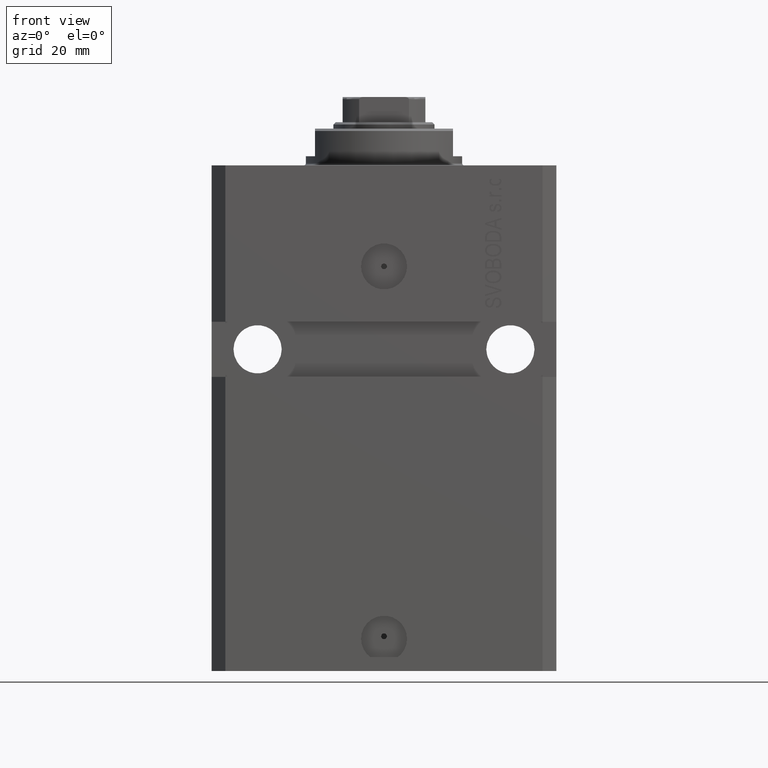
[diagram: clean part render]
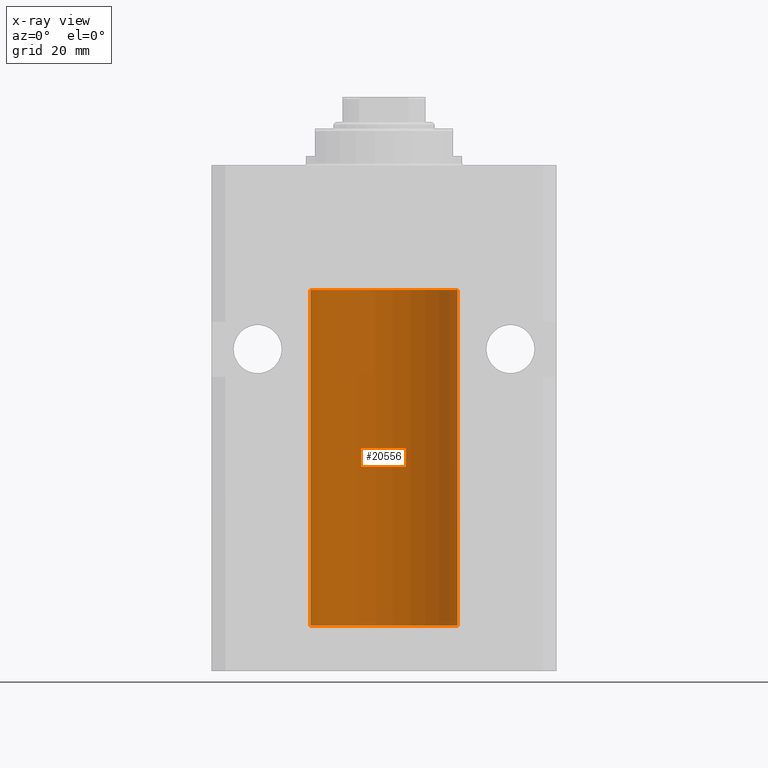
[diagram: x-ray — body ghosted, one internal face saturated and labeled with its STEP entity id]
A machine part, front view, then the same camera in x-ray: the body is ghosted and one INTERNAL B-rep face — a face not visible from any outside direction — is saturated and labeled: STEP entity #20556.
In plain terms, the highlighted cylindrical surface (partial cylindrical patch) has radius 16 mm, axis along (0, 0, 1).
Its self-contained STEP definition (entity closure, byte-faithful):
#114 = B_SPLINE_CURVE_WITH_KNOTS ( 'NONE', 3,
 ( #31271, #35084, #28152, #2066, #16691, #31974, #24103, #38223 ),
 .UNSPECIFIED., .F., .F.,
 ( 4, 2, 2, 4 ),
 ( 0.0009773326288700682433, 0.001221554802188685399, 0.001465776975507302772, 0.001954221322144537518 ),
 .UNSPECIFIED. ) ;
#891 = EDGE_CURVE ( 'NONE', #12494, #15029, #44845, .T. ) ;
#1212 = VECTOR ( 'NONE', #8064, 1000.000000000000000 ) ;
#1731 = VECTOR ( 'NONE', #17232, 1000.000000000000000 ) ;
#1970 = CARTESIAN_POINT ( 'NONE',  ( 0.000000000000000000, 0.000000000000000000, -27.10000000000000142 ) ) ;
#2066 = CARTESIAN_POINT ( 'NONE',  ( 15.99070695999103542, 0.5461439696927204990, -97.68526802364048933 ) ) ;
#2711 = EDGE_CURVE ( 'NONE', #21447, #28491, #37248, .T. ) ;
#2772 = CARTESIAN_POINT ( 'NONE',  ( 15.98778830858070954, 0.6250000000080517815, -97.99999999999916156 ) ) ;
#3804 = CARTESIAN_POINT ( 'NONE',  ( -15.99707730059171240, 0.3150375992092294686, -97.45402333202572720 ) ) ;
#3817 = DIRECTION ( 'NONE',  ( 1.000000000000000000, 0.000000000000000000, 0.000000000000000000 ) ) ;
#3882 = CARTESIAN_POINT ( 'NONE',  ( 0.000000000000000000, 0.000000000000000000, -100.0999999999999943 ) ) ;
#4028 = CIRCLE ( 'NONE', #30773, 16.00000000000000000 ) ;
#4309 = CARTESIAN_POINT ( 'NONE',  ( 16.00000000000000000, -1.835653844722709729E-15, -98.62500000000000000 ) ) ;
#4752 = CARTESIAN_POINT ( 'NONE',  ( -15.99711699979841661, 0.3253759916140614439, -98.55856151623174810 ) ) ;
#5467 = ORIENTED_EDGE ( 'NONE', *, *, #32727, .T. ) ;
#6295 = B_SPLINE_CURVE_WITH_KNOTS ( 'NONE', 3,
 ( #9059, #38246, #46150, #31292, #42532, #13344, #38005, #20750 ),
 .UNSPECIFIED., .F., .F.,
 ( 4, 2, 2, 4 ),
 ( 1.783888443149829469E-18, 0.0002443331572175257886, 0.0004886663144350497342, 0.0009773326288700682433 ),
 .UNSPECIFIED. ) ;
#6352 = EDGE_CURVE ( 'NONE', #40567, #27099, #6295, .T. ) ;
#7632 = CARTESIAN_POINT ( 'NONE',  ( -15.99548640841682712, 0.3843705577988784650, -97.50046628527007897 ) ) ;
#7664 = EDGE_CURVE ( 'NONE', #10472, #28120, #42254, .T. ) ;
#7740 = CARTESIAN_POINT ( 'NONE',  ( 16.00000000000000000, 0.000000000000000000, -100.0999999999999943 ) ) ;
#8064 = DIRECTION ( 'NONE',  ( -0.000000000000000000, -0.000000000000000000, 1.000000000000000000 ) ) ;
#9059 = CARTESIAN_POINT ( 'NONE',  ( 16.00000000000000000, -1.835653844722709729E-15, -98.62500000000000000 ) ) ;
#9445 = CARTESIAN_POINT ( 'NONE',  ( 16.00000000000000000, 0.000000000000000000, -100.0999999999999943 ) ) ;
#9485 = CARTESIAN_POINT ( 'NONE',  ( -16.00000000000000000, 1.959434878635765131E-15, -100.0999999999999943 ) ) ;
#9709 = DIRECTION ( 'NONE',  ( -0.000000000000000000, -0.000000000000000000, 1.000000000000000000 ) ) ;
#10472 = VERTEX_POINT ( 'NONE', #27111 ) ;
#10588 = DIRECTION ( 'NONE',  ( 0.000000000000000000, 0.000000000000000000, 1.000000000000000000 ) ) ;
#10821 = DIRECTION ( 'NONE',  ( 1.000000000000000000, 0.000000000000000000, 0.000000000000000000 ) ) ;
#11691 = CARTESIAN_POINT ( 'NONE',  ( -16.00000000000000000, -1.303459030566954747E-14, -97.37500000000000000 ) ) ;
#12287 = DIRECTION ( 'NONE',  ( 1.000000000000000000, 0.000000000000000000, 0.000000000000000000 ) ) ;
#12494 = VERTEX_POINT ( 'NONE', #7740 ) ;
#12529 = DIRECTION ( 'NONE',  ( 0.000000000000000000, 0.000000000000000000, 1.000000000000000000 ) ) ;
#13344 = CARTESIAN_POINT ( 'NONE',  ( 15.99070366873610283, 0.5574063959867601170, -98.32639436837558833 ) ) ;
#13533 = EDGE_LOOP ( 'NONE', ( #28708, #19731, #15652, #35348, #19480, #34161, #41862, #21946, #5467 ) ) ;
#14752 = VECTOR ( 'NONE', #9709, 1000.000000000000000 ) ;
#15029 = VERTEX_POINT ( 'NONE', #20267 ) ;
#15051 = CARTESIAN_POINT ( 'NONE',  ( -15.99070426498503572, 0.5462220647145610286, -98.31460064614144301 ) ) ;
#15562 = VERTEX_POINT ( 'NONE', #27278 ) ;
#15652 = ORIENTED_EDGE ( 'NONE', *, *, #19218, .T. ) ;
#15759 = CARTESIAN_POINT ( 'NONE',  ( -15.99934216141748244, 0.1636497843296308152, -97.39126528029306940 ) ) ;
#16691 = CARTESIAN_POINT ( 'NONE',  ( 15.99228275317786441, 0.5002975944204781644, -97.61642014570176684 ) ) ;
#17232 = DIRECTION ( 'NONE',  ( -0.000000000000000000, -0.000000000000000000, 1.000000000000000000 ) ) ;
#18395 = CARTESIAN_POINT ( 'NONE',  ( -15.98778717651346604, 0.6250289588122097673, -98.08131585687051768 ) ) ;
#19108 = CARTESIAN_POINT ( 'NONE',  ( -15.98844267028590949, 0.6088369347963275002, -98.16324735024325321 ) ) ;
#19218 = EDGE_CURVE ( 'NONE', #12494, #40567, #32964, .T. ) ;
#19480 = ORIENTED_EDGE ( 'NONE', *, *, #31014, .T. ) ;
#19731 = ORIENTED_EDGE ( 'NONE', *, *, #891, .F. ) ;
#20267 = CARTESIAN_POINT ( 'NONE',  ( -16.00000000000000000, 1.959434878635765131E-15, -100.0999999999999943 ) ) ;
#20556 = ADVANCED_FACE ( 'NONE', ( #34942 ), #39726, .F. ) ;
#20750 = CARTESIAN_POINT ( 'NONE',  ( 15.98778830858070954, 0.6250000000080517815, -97.99999999999916156 ) ) ;
#21447 = VERTEX_POINT ( 'NONE', #29891 ) ;
#21946 = ORIENTED_EDGE ( 'NONE', *, *, #7664, .F. ) ;
#22697 = CARTESIAN_POINT ( 'NONE',  ( -15.98779057735153941, 0.6249419637998017141, -97.83670145863504786 ) ) ;
#24103 = CARTESIAN_POINT ( 'NONE',  ( 15.99999999999999645, 0.1631343969470158417, -97.37500000000021316 ) ) ;
#25923 = AXIS2_PLACEMENT_3D ( 'NONE', #32762, #35875, #3817 ) ;
#26282 = CARTESIAN_POINT ( 'NONE',  ( -15.99070653155267685, 0.5573233280232928744, -97.67348148680505915 ) ) ;
#27099 = VERTEX_POINT ( 'NONE', #2772 ) ;
#27111 = CARTESIAN_POINT ( 'NONE',  ( -16.00000000000000000, -1.303459030566954747E-14, -97.37500000000000000 ) ) ;
#27278 = CARTESIAN_POINT ( 'NONE',  ( -16.00000000000013145, 3.685127046438747128E-13, -98.62500000000343903 ) ) ;
#27499 = VECTOR ( 'NONE', #40621, 1000.000000000000000 ) ;
#28120 = VERTEX_POINT ( 'NONE', #47248 ) ;
#28152 = CARTESIAN_POINT ( 'NONE',  ( 15.98844460043491367, 0.6087869699337551399, -97.83657454967556077 ) ) ;
#28491 = VERTEX_POINT ( 'NONE', #35805 ) ;
#28708 = ORIENTED_EDGE ( 'NONE', *, *, #36312, .F. ) ;
#29891 = CARTESIAN_POINT ( 'NONE',  ( 16.00000000000013145, 3.665532692826917502E-13, -97.37499999999657518 ) ) ;
#30338 = CARTESIAN_POINT ( 'NONE',  ( -15.99228023727724057, 0.5003781296993360383, -98.38347829554236057 ) ) ;
#30773 = AXIS2_PLACEMENT_3D ( 'NONE', #1970, #12529, #12287 ) ;
#31014 = EDGE_CURVE ( 'NONE', #27099, #21447, #114, .T. ) ;
#31271 = CARTESIAN_POINT ( 'NONE',  ( 15.98778830858070954, 0.6250000000080517815, -97.99999999999916156 ) ) ;
#31292 = CARTESIAN_POINT ( 'NONE',  ( 15.99707608081895138, 0.3151028052310259620, -98.54594170697734512 ) ) ;
#31974 = CARTESIAN_POINT ( 'NONE',  ( 15.99711856062700477, 0.3252985083514284281, -97.44140297987712529 ) ) ;
#32727 = EDGE_CURVE ( 'NONE', #10472, #15562, #38859, .T. ) ;
#32762 = CARTESIAN_POINT ( 'NONE',  ( 0.000000000000000000, 0.000000000000000000, -100.0999999999999943 ) ) ;
#32964 = LINE ( 'NONE', #43966, #27499 ) ;
#32982 = CARTESIAN_POINT ( 'NONE',  ( -16.00000000000013145, 3.685127046438747128E-13, -98.62500000000343903 ) ) ;
#33351 = AXIS2_PLACEMENT_3D ( 'NONE', #3882, #10588, #10821 ) ;
#34161 = ORIENTED_EDGE ( 'NONE', *, *, #2711, .T. ) ;
#34942 = FACE_OUTER_BOUND ( 'NONE', #13533, .T. ) ;
#35084 = CARTESIAN_POINT ( 'NONE',  ( 15.98778830858103817, 0.6249999999997223332, -97.91847885046210820 ) ) ;
#35348 = ORIENTED_EDGE ( 'NONE', *, *, #6352, .T. ) ;
#35805 = CARTESIAN_POINT ( 'NONE',  ( 16.00000000000000000, 0.000000000000000000, -27.10000000000000142 ) ) ;
#35875 = DIRECTION ( 'NONE',  ( -0.000000000000000000, -0.000000000000000000, 1.000000000000000000 ) ) ;
#36312 = EDGE_CURVE ( 'NONE', #15029, #15562, #42114, .T. ) ;
#36627 = EDGE_CURVE ( 'NONE', #28491, #28120, #4028, .T. ) ;
#37248 = LINE ( 'NONE', #9445, #1212 ) ;
#37280 = CARTESIAN_POINT ( 'NONE',  ( -15.99999999999998934, 0.1631714642025804407, -98.62499999999987210 ) ) ;
#38005 = CARTESIAN_POINT ( 'NONE',  ( 15.98778830858101685, 0.6250000000002223777, -98.16311639173024162 ) ) ;
#38223 = CARTESIAN_POINT ( 'NONE',  ( 16.00000000000013145, 3.665532692826917502E-13, -97.37499999999657518 ) ) ;
#38246 = CARTESIAN_POINT ( 'NONE',  ( 16.00000000000001066, 0.08261762387943044628, -98.62500000000001421 ) ) ;
#38859 = B_SPLINE_CURVE_WITH_KNOTS ( 'NONE', 3,
 ( #11691, #44461, #15759, #3804, #7632, #26282, #22697, #18395, #19108, #15051, #30338, #4752, #37280, #32982 ),
 .UNSPECIFIED., .F., .F.,
 ( 4, 2, 2, 2, 2, 2, 4 ),
 ( 1.003919637555167698E-18, 0.0002442776652680894158, 0.0004885553305361776391, 0.0009771106610723541940, 0.001221388326340463017, 0.001465665991608572274, 0.001954221322144760863 ),
 .UNSPECIFIED. ) ;
#39726 = CYLINDRICAL_SURFACE ( 'NONE', #25923, 16.00000000000000000 ) ;
#40567 = VERTEX_POINT ( 'NONE', #4309 ) ;
#40621 = DIRECTION ( 'NONE',  ( -0.000000000000000000, -0.000000000000000000, 1.000000000000000000 ) ) ;
#41862 = ORIENTED_EDGE ( 'NONE', *, *, #36627, .T. ) ;
#42114 = LINE ( 'NONE', #42352, #1731 ) ;
#42254 = LINE ( 'NONE', #9485, #14752 ) ;
#42352 = CARTESIAN_POINT ( 'NONE',  ( -16.00000000000000000, 1.959434878635765131E-15, -100.0999999999999943 ) ) ;
#42532 = CARTESIAN_POINT ( 'NONE',  ( 15.99548458234361448, 0.3844468804816183471, -98.49947786696355934 ) ) ;
#43966 = CARTESIAN_POINT ( 'NONE',  ( 16.00000000000000000, 0.000000000000000000, -100.0999999999999943 ) ) ;
#44461 = CARTESIAN_POINT ( 'NONE',  ( -16.00000000000000711, 0.08259886010188650929, -97.37500000000000000 ) ) ;
#44845 = CIRCLE ( 'NONE', #33351, 16.00000000000000000 ) ;
#46150 = CARTESIAN_POINT ( 'NONE',  ( 15.99934183755190986, 0.1636877470527013101, -98.60872690654072414 ) ) ;
#47248 = CARTESIAN_POINT ( 'NONE',  ( -16.00000000000000000, 1.959434878635765131E-15, -27.10000000000000142 ) ) ;